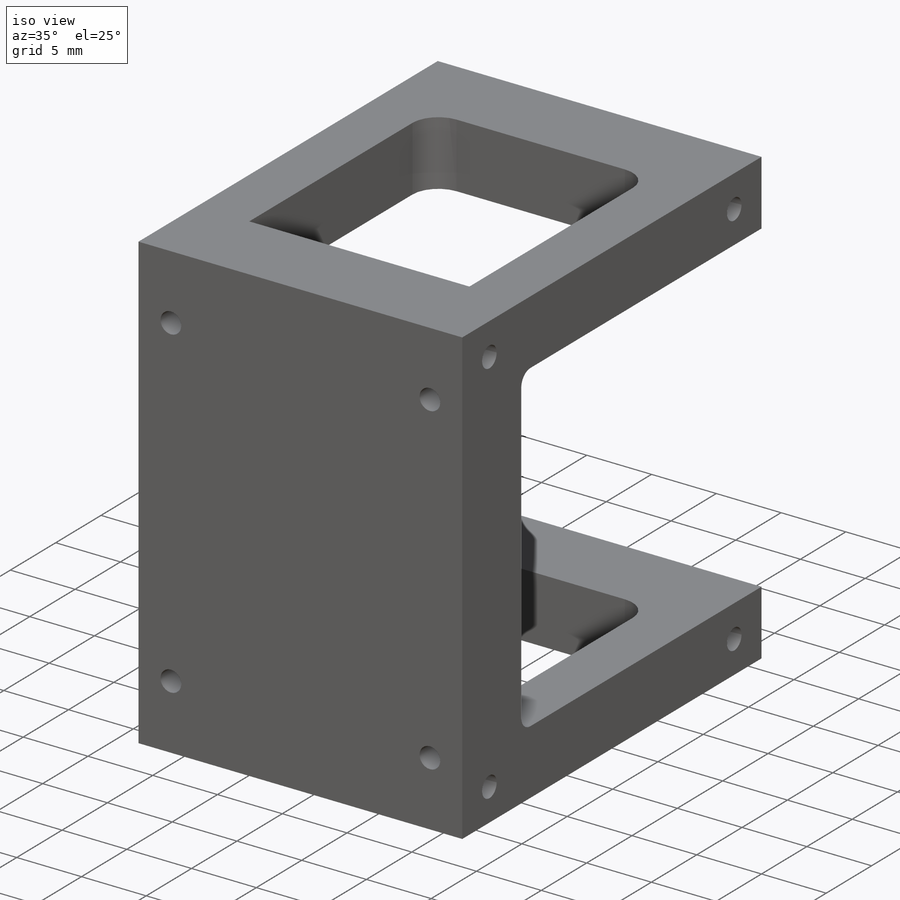
[diagram: iso view]
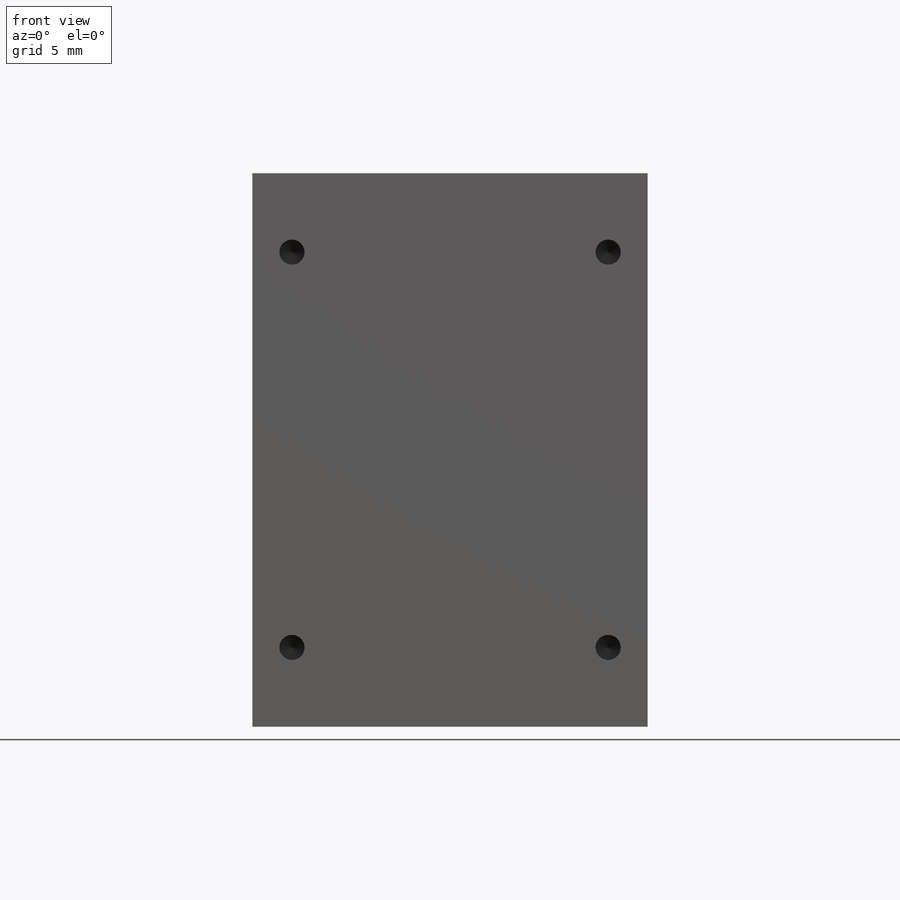
[diagram: front view]
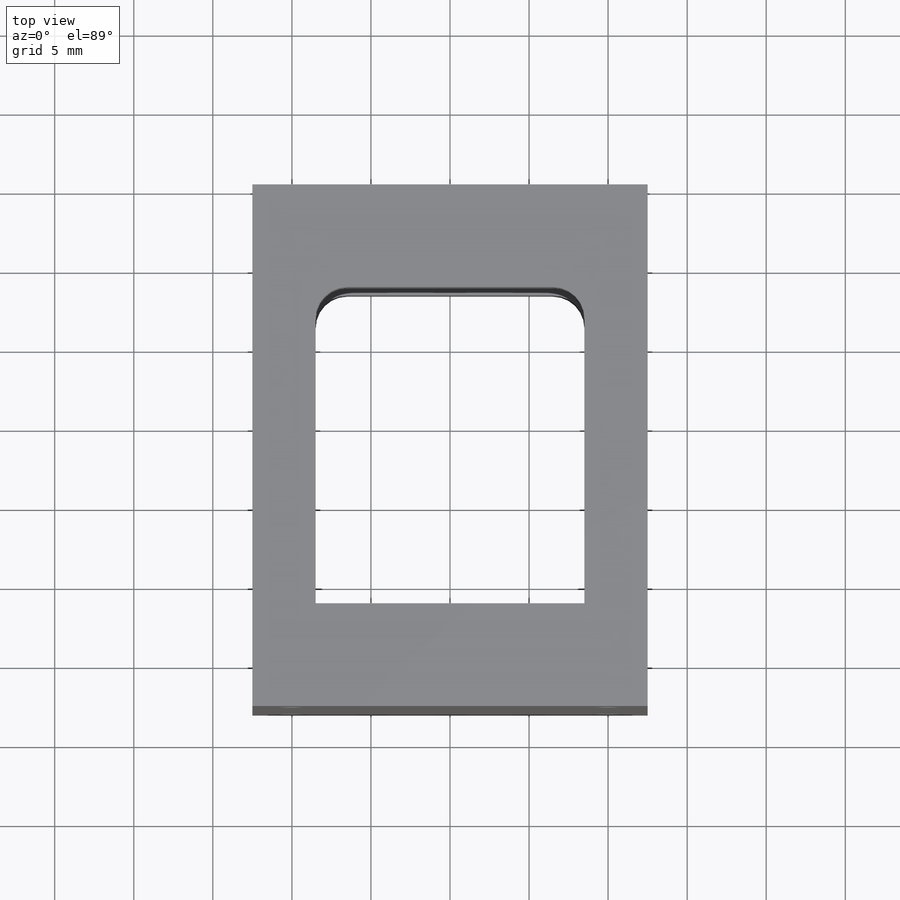
[diagram: top view]
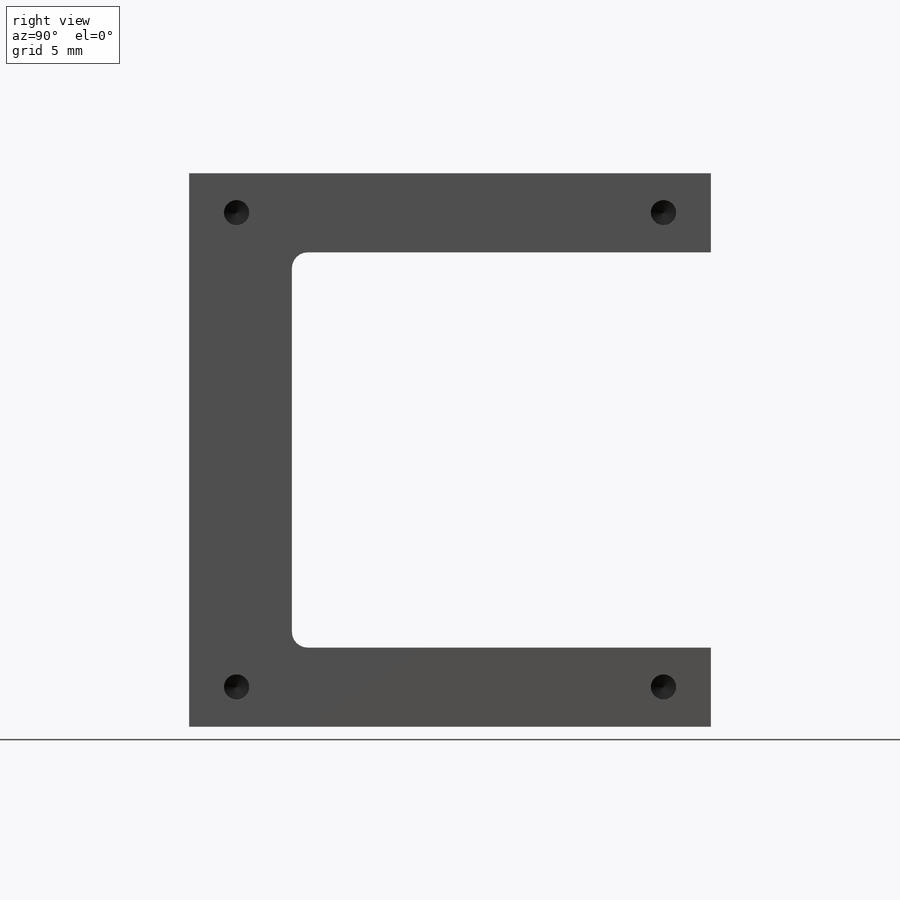
[diagram: right view]
SOLIDWORKS PART (.sldprt)
format: sldprt  version: not decoded by parser v0  size: 767,488 bytes
history: native  units: mm
features: sketch x13, hole x4, cut_extrude x3, mirror x2, fillet x2, material x1, extrude x1, plane x1 (+12 scaffold rows collapsed)
feature tree (39):
  scaffold x12  (default folders/planes/origin — collapsed)
  material  "ABS"
  sketch  "Sketch1"  dims[D1=25.0mm D2=35.0mm]
  extrude  "Boss-Extrude1"  Depth=3mm
  hole  "Tap Drill for M2 Tap1"  Diameter=1.6mm Depth=6mm
  sketch  "Sketch5"  dims[D1=3.0mm D2=30.0mm]
  sketch  "Sketch4"  dims[hole-wizard template sketch: 47 standard entries collapsed; hole parameters kept: c15.Hole Depth=6.0mm c15.D3=~14.816244mm c15.Drill Angle=118.0deg]
  mirror  "Mirror2"
  hole  "Tap Drill for M2 Tap2"  Diameter=1.6mm Depth=6mm
  sketch  "Sketch8"  dims[D1=20.0mm D2=25.0mm]
  sketch  "Sketch7"  dims[hole-wizard template sketch: 47 standard entries collapsed; hole parameters kept: c15.Hole Depth=6.0mm c15.D3=~14.816244mm c15.Drill Angle=118.0deg]
  sketch  "Sketch14"  dims[c1.D3=1.0mm c1.D1=26.0mm c1.D2=3.5mm c2.D1=5.0mm]
  cut_extrude  "Cut-Extrude1"  [1 undecoded]
  plane  "Plane1"
  mirror  "Mirror3"
  hole  "Tap Drill for M3 Tap1"  Diameter=2.5mm Depth=64mm
  sketch  "Sketch16"
  sketch  "Sketch15"  dims[hole-wizard template sketch: 47 standard entries collapsed; hole parameters kept: c15.Hole Depth=64.0mm c15.D3=~14.816244mm c15.Drill Angle=118.0deg]
  sketch  "Sketch19"  dims[D3=2.0mm D1=17.0mm D2=20.0mm]
  cut_extrude  "Cut-Extrude2"  Depth=41mm
  hole  "Ø3.5 (3.5) Diameter Hole1"  Diameter=3.5mm Depth=2mm
  sketch  "Sketch21"  dims[D1=15.0mm]
  sketch  "Sketch20"  dims[hole-wizard template sketch: 46 standard entries collapsed; hole parameters kept: c15.Hole Dia.=3.5mm c15.Hole Depth=2.0mm c15.D3=~14.816244mm c15.Drill Angle=180.0deg]
  sketch  "Sketch23"  dims[D1=4.0mm D2=1.3mm]
  cut_extrude  "Cut-Extrude3"  Depth=1.5mm
  fillet  "Fillet1"  Radius=1mm
  sketch  "Sketch24"  dims[D1=4.0mm]
  fillet  "Fillet2"  Radius=2mm
decode coverage: 21 of 25 modeling features carry decoded parameters
note: ~ marks probable driven/reference dimensions
note: 1 parameter value undecoded
summary: Diameter pulled from absorbed wizard sketch
note: suppression state not decoded; provenance and decode notes live in map.json
